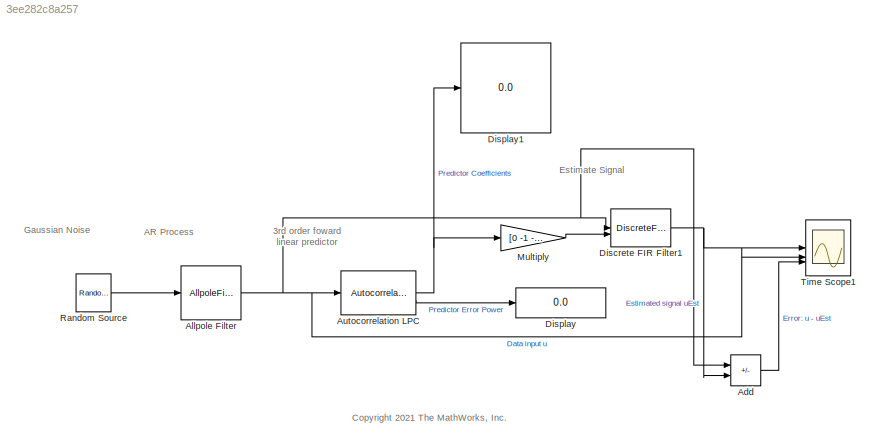
MODEL slx_3ee282c8a257
KIND model
CONFIG AbsTol = auto
CONFIG EnableMultiTasking = off
CONFIG FixedStep = auto
CONFIG MaxStep = auto
CONFIG MinStep = auto
CONFIG RelTol = 1e-3
CONFIG SampleTimeConstraint = Unconstrained
CONFIG SolverName = VariableStepAuto
CONFIG StartTime = 0.0
CONFIG StopTime = 500000
BLOCK [Sum] Add
  IconShape = rectangular
  Inputs = +-
BLOCK [AllpoleFilter] Allpole Filter
  Coefficients = [1 0.5 1/3 0.25 1/5 1/6]
  InputPortMap = u0
  OutputPortMap = o0
BLOCK [Reference] Autocorrelation LPC  REF=dsplp/Autocorrelation
LPC
  SourceBlock = dsplp/Autocorrelation\nLPC
  SourceType = Autocorrelation LPC
BLOCK [DiscreteFir] Discrete FIR Filter1
  CoefSource = Input port
  Coefficients = [1 0.5 1/3 0.25]
  InputPortMap = u0,u1
  OutputPortMap = o0
BLOCK [Display] Display
  Decimation = 1
BLOCK [Display] Display1
  Decimation = 1
BLOCK [Gain] Multiply
  Gain = [0 -1 -1 -1]
BLOCK [Reference] Random Source  REF=dspsrcs4/Random
Source
  SourceBlock = dspsrcs4/Random\nSource
  SourceType = Random Source
  UserDataPersistent = on
BLOCK [Scope] Time Scope1
  DefaultConfigurationName = spbscopes.TimeScopeBlockCfg
  Floating = off
  NumInputPorts = 3
  ScopeSpecificationString = spbscopes.TimeScopeBlockCfg('CurrentConfiguration', extmgr.ConfigurationSet(extmgr.Configuration('Core','General UI',true),extmgr.Configuration('Core','Source UI',true),extmgr.Configuration('Sources','WiredSimulink',true,'DataLoggingVariableName','ScopeData1'),extmgr.Configuration('Visuals','Time Domain',true,'DisplayPropertyDefaults',struct('MinYLimReal','-0.27549','MaxYLimReal','0.27113','YLabel...<+1548ch>
  UserDataPersistent = on
ANNOTATION (root): 3rd order foward linear predictor
ANNOTATION (root): AR Process
ANNOTATION (root): <copyright redacted>
ANNOTATION (root): Estimate Signal
ANNOTATION (root): Gaussian Noise
LINE Add:1 -> Time Scope1:3
NET Allpole Filter:1 -> Add:1, Autocorrelation LPC:1, Discrete FIR Filter1:1, Time Scope1:2
NET Autocorrelation LPC:1 -> Display1:1, Multiply:1
LINE Autocorrelation LPC:2 -> Display:1
NET Discrete FIR Filter1:1 -> Add:2, Time Scope1:1
LINE Multiply:1 -> Discrete FIR Filter1:2
LINE Random Source:1 -> Allpole Filter:1
note: NET lines group one-source signal fan-out (src -> all destinations, sorted); 1:1 wires keep LINE
